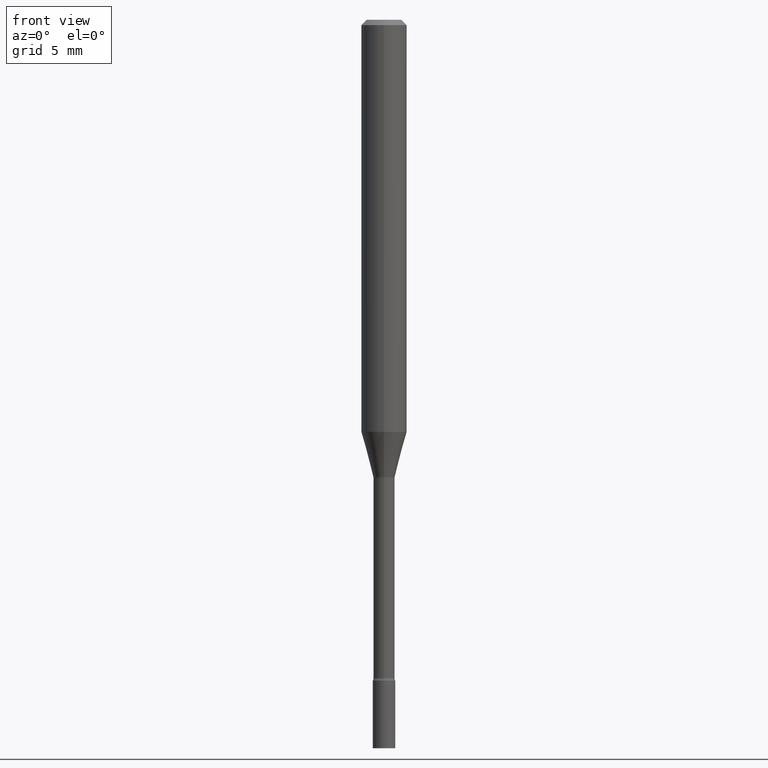
[diagram: clean part render]
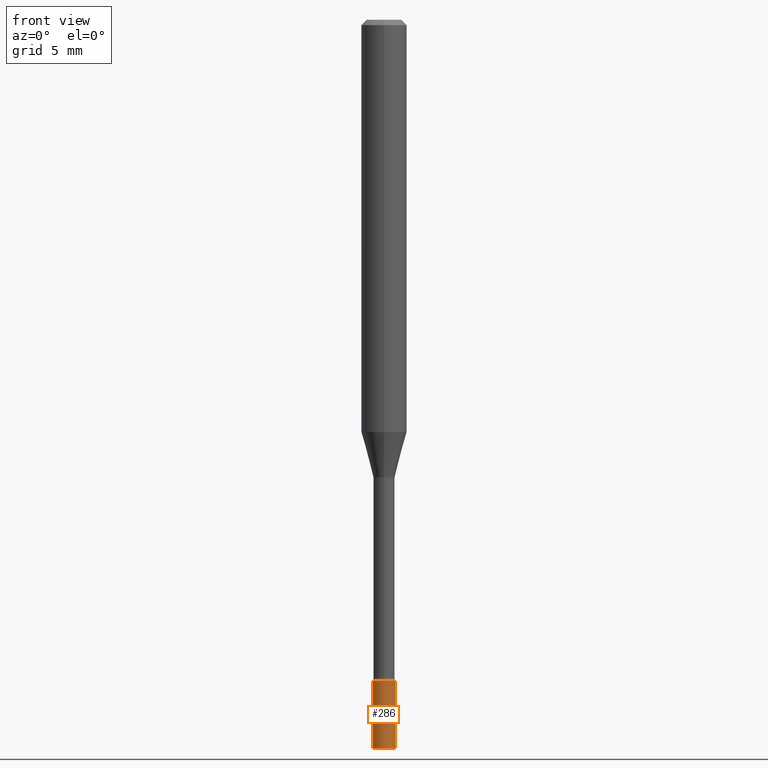
[diagram: same view with one face highlighted and labeled with its STEP entity id]
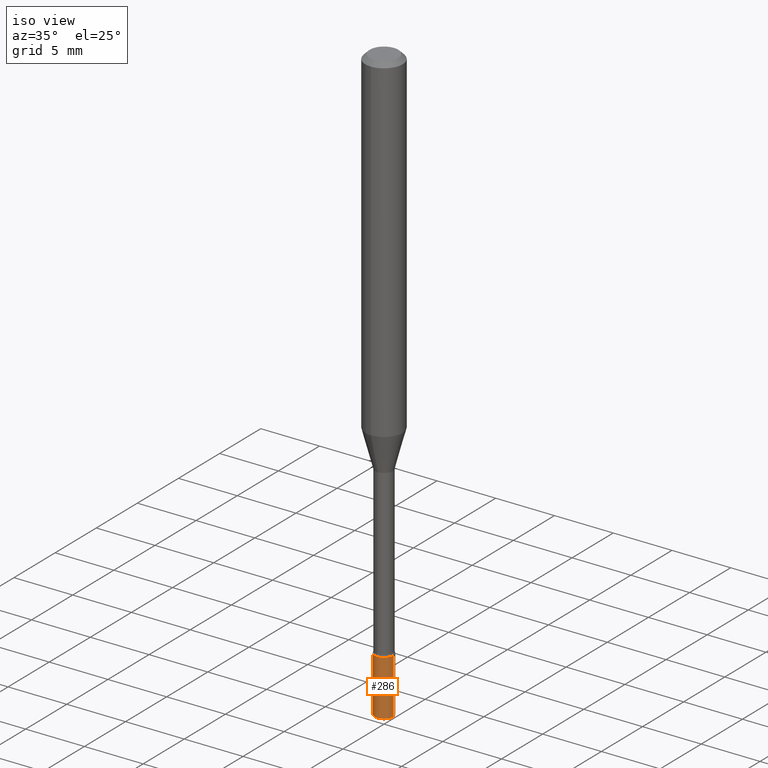
[diagram: same view with one face highlighted and labeled with its STEP entity id]
A machine part, front view. The second image highlights one B-rep face of the part: STEP entity #286.
A second angle (iso view) of the same face is appended — the face is thin or edge-on in the first view.
In plain terms, the highlighted cylindrical surface (edge-blend (fillet) strip) has radius 0.7874 mm, axis along (-0, 0, 1).
Its self-contained STEP definition (entity closure, byte-faithful):
#1 = CARTESIAN_POINT ( 'NONE',  ( -0.03099999999999999978, -6.437986665088246838E-15, -1.813999999999999835 ) ) ;
#8 = FACE_OUTER_BOUND ( 'NONE', #251, .T. ) ;
#9 = CARTESIAN_POINT ( 'NONE',  ( 0.03099999999999999978, -7.199434520694564708E-15, -2.000000000000000000 ) ) ;
#15 = VERTEX_POINT ( 'NONE', #430 ) ;
#35 = ORIENTED_EDGE ( 'NONE', *, *, #85, .F. ) ;
#52 = DIRECTION ( 'NONE',  ( -2.445468806185136597E-29, 3.491481338843145583E-15, 1.000000000000000000 ) ) ;
#63 = VERTEX_POINT ( 'NONE', #1 ) ;
#84 = DIRECTION ( 'NONE',  ( -2.445468806185136597E-29, 3.491481338843145583E-15, 1.000000000000000000 ) ) ;
#85 = EDGE_CURVE ( 'NONE', #15, #63, #272, .T. ) ;
#125 = DIRECTION ( 'NONE',  ( 1.000000000000000000, -6.982962677686270655E-15, 0.000000000000000000 ) ) ;
#166 = CYLINDRICAL_SURFACE ( 'NONE', #290, 0.03099999999999999978 ) ;
#168 = DIRECTION ( 'NONE',  ( 1.000000000000000000, -6.982962677686270655E-15, 0.000000000000000000 ) ) ;
#209 = CARTESIAN_POINT ( 'NONE',  ( 0.03099999999999999978, -6.550018991669739348E-15, -1.813999999999999835 ) ) ;
#226 = ORIENTED_EDGE ( 'NONE', *, *, #259, .T. ) ;
#248 = ORIENTED_EDGE ( 'NONE', *, *, #426, .T. ) ;
#251 = EDGE_LOOP ( 'NONE', ( #35, #226, #248, #267 ) ) ;
#257 = AXIS2_PLACEMENT_3D ( 'NONE', #445, #84, #125 ) ;
#259 = EDGE_CURVE ( 'NONE', #15, #332, #500, .T. ) ;
#267 = ORIENTED_EDGE ( 'NONE', *, *, #368, .F. ) ;
#272 = LINE ( 'NONE', #279, #289 ) ;
#278 = DIRECTION ( 'NONE',  ( 1.000000000000000000, -6.982962677686266711E-15, 4.876176775795935232E-29 ) ) ;
#279 = CARTESIAN_POINT ( 'NONE',  ( -0.03099999999999999978, 2.202682480856310560E-16, -1.524869877979020612E-30 ) ) ;
#286 = ADVANCED_FACE ( 'NONE', ( #8 ), #166, .T. ) ;
#288 = DIRECTION ( 'NONE',  ( -2.445468806185136877E-29, 3.491481338843145188E-15, 1.000000000000000000 ) ) ;
#289 = VECTOR ( 'NONE', #446, 39.37007874015748143 ) ;
#290 = AXIS2_PLACEMENT_3D ( 'NONE', #440, #52, #278 ) ;
#292 = CARTESIAN_POINT ( 'NONE',  ( 0.03099999999999999978, -2.164718430082742572E-16, 1.511614800496739984E-30 ) ) ;
#298 = VERTEX_POINT ( 'NONE', #209 ) ;
#332 = VERTEX_POINT ( 'NONE', #9 ) ;
#347 = CIRCLE ( 'NONE', #257, 0.03099999999999999978 ) ;
#359 = DIRECTION ( 'NONE',  ( -2.445468806185136597E-29, 3.491481338843145583E-15, 1.000000000000000000 ) ) ;
#368 = EDGE_CURVE ( 'NONE', #63, #298, #347, .T. ) ;
#371 = AXIS2_PLACEMENT_3D ( 'NONE', #483, #359, #168 ) ;
#374 = LINE ( 'NONE', #292, #482 ) ;
#426 = EDGE_CURVE ( 'NONE', #332, #298, #374, .T. ) ;
#430 = CARTESIAN_POINT ( 'NONE',  ( -0.03099999999999999978, -6.437986665088246838E-15, -2.000000000000000000 ) ) ;
#440 = CARTESIAN_POINT ( 'NONE',  ( 0.000000000000000000, 0.000000000000000000, 0.000000000000000000 ) ) ;
#445 = CARTESIAN_POINT ( 'NONE',  ( 4.436080414419837365E-29, -6.333547148661465016E-15, -1.813999999999999835 ) ) ;
#446 = DIRECTION ( 'NONE',  ( -2.445468806185136877E-29, 3.491481338843145188E-15, 1.000000000000000000 ) ) ;
#482 = VECTOR ( 'NONE', #288, 39.37007874015748143 ) ;
#483 = CARTESIAN_POINT ( 'NONE',  ( 4.890937612370273194E-29, -6.982962677686291165E-15, -2.000000000000000000 ) ) ;
#500 = CIRCLE ( 'NONE', #371, 0.03099999999999999978 ) ;